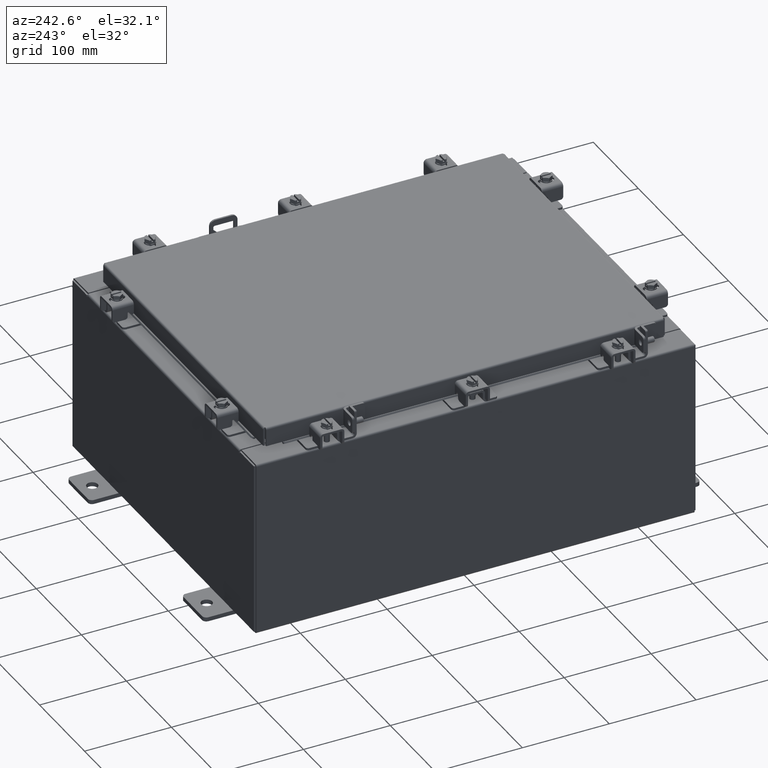
[diagram: clean part render]
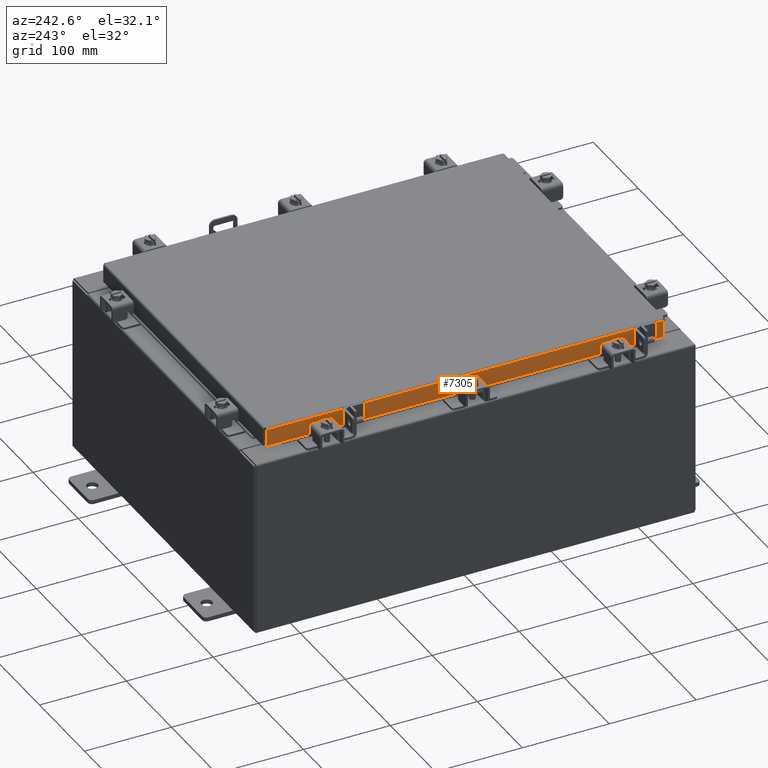
[diagram: same view with one face highlighted and labeled with its STEP entity id]
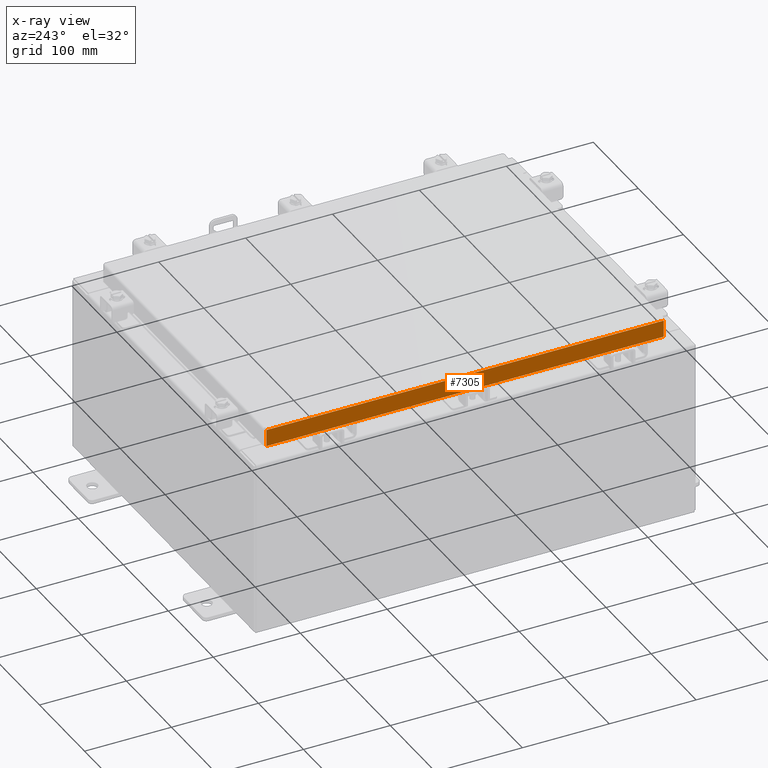
[diagram: x-ray of the same camera — body ghosted, the highlighted face saturated]
A machine part, auxiliary view. The second image highlights one B-rep face of the part: STEP entity #7305.
The next image is the same camera in x-ray: the body ghosted, the highlighted face saturated — about 0% of this face is hidden behind the body in this view.
In plain terms, the highlighted planar face has unit normal (1, 0, -0).
Its self-contained STEP definition (entity closure, byte-faithful):
#1792 = DIRECTION ( 'NONE',  ( 3.387180227794633400E-031, -1.000000000000000000, -9.232666117091638000E-046 ) ) ;
#2144 = VECTOR ( 'NONE', #16639, 39.37007874015748100 ) ;
#2177 = LINE ( 'NONE', #9403, #9802 ) ;
#2475 = VECTOR ( 'NONE', #13735, 39.37007874015748100 ) ;
#2730 = CARTESIAN_POINT ( 'NONE',  ( -7.078000000000001200, -8.255157864376263500, -0.8500000000000023100 ) ) ;
#2919 = CARTESIAN_POINT ( 'NONE',  ( -7.078000000000003800, 9.005157864376265300, 8.309553424256679200E-014 ) ) ;
#3503 = LINE ( 'NONE', #7220, #21470 ) ;
#3712 = ORIENTED_EDGE ( 'NONE', *, *, #7008, .F. ) ;
#4102 = LINE ( 'NONE', #5218, #8186 ) ;
#5102 = CARTESIAN_POINT ( 'NONE',  ( -7.078000000000003800, 9.005157864376265300, -0.08770000000000007000 ) ) ;
#5140 = CARTESIAN_POINT ( 'NONE',  ( -7.078000000000003800, -2.397446165233042600E-030, 2.021285296895435800E-014 ) ) ;
#5218 = CARTESIAN_POINT ( 'NONE',  ( -7.078000000000003800, -9.094000000000003000, -0.08770000000000007000 ) ) ;
#6580 = VERTEX_POINT ( 'NONE', #5102 ) ;
#6734 = LINE ( 'NONE', #2919, #20600 ) ;
#6764 = LINE ( 'NONE', #2730, #2144 ) ;
#7008 = EDGE_CURVE ( 'NONE', #12751, #7449, #6764, .T. ) ;
#7017 = FACE_OUTER_BOUND ( 'NONE', #20266, .T. ) ;
#7220 = CARTESIAN_POINT ( 'NONE',  ( -7.078000000000003800, -9.005157864376270600, -0.07469999999999978000 ) ) ;
#7305 = ADVANCED_FACE ( 'NONE', ( #7017 ), #15638, .F. ) ;
#7449 = VERTEX_POINT ( 'NONE', #17662 ) ;
#8115 = VERTEX_POINT ( 'NONE', #9380 ) ;
#8186 = VECTOR ( 'NONE', #1792, 39.37007874015748100 ) ;
#8711 = DIRECTION ( 'NONE',  ( -2.818880942772360100E-015, 0.0000000000000000000, -1.000000000000000000 ) ) ;
#8900 = AXIS2_PLACEMENT_3D ( 'NONE', #5140, #19114, #8711 ) ;
#9370 = EDGE_CURVE ( 'NONE', #6580, #14653, #6734, .T. ) ;
#9380 = CARTESIAN_POINT ( 'NONE',  ( -7.078000000000005600, -9.005157864376265300, -0.8499999999999996400 ) ) ;
#9403 = CARTESIAN_POINT ( 'NONE',  ( -7.078000000000005600, -9.094000000000003000, -0.8499999999999996400 ) ) ;
#9802 = VECTOR ( 'NONE', #21572, 39.37007874015748100 ) ;
#10406 = ORIENTED_EDGE ( 'NONE', *, *, #20164, .F. ) ;
#11498 = ORIENTED_EDGE ( 'NONE', *, *, #9370, .T. ) ;
#11509 = ORIENTED_EDGE ( 'NONE', *, *, #19102, .F. ) ;
#12243 = ORIENTED_EDGE ( 'NONE', *, *, #17860, .F. ) ;
#12751 = VERTEX_POINT ( 'NONE', #14947 ) ;
#13735 = DIRECTION ( 'NONE',  ( 4.379057701015054300E-047, 1.000000000000000000, 1.201604571657912400E-016 ) ) ;
#14653 = VERTEX_POINT ( 'NONE', #17854 ) ;
#14881 = ORIENTED_EDGE ( 'NONE', *, *, #21016, .F. ) ;
#14947 = CARTESIAN_POINT ( 'NONE',  ( -7.078000000000001200, -8.255157864376261800, -0.8500000000000023100 ) ) ;
#15112 = DIRECTION ( 'NONE',  ( -2.818880942772360100E-015, 6.982962677686265900E-015, -1.000000000000000000 ) ) ;
#15638 = PLANE ( 'NONE',  #8900 ) ;
#16338 = LINE ( 'NONE', #22247, #2475 ) ;
#16639 = DIRECTION ( 'NONE',  ( -0.0000000000000000000, 1.000000000000000000, -0.0000000000000000000 ) ) ;
#17568 = VERTEX_POINT ( 'NONE', #19181 ) ;
#17662 = CARTESIAN_POINT ( 'NONE',  ( -7.078000000000001200, 8.255157864376267100, -0.8500000000000023100 ) ) ;
#17854 = CARTESIAN_POINT ( 'NONE',  ( -7.078000000000005600, 9.005157864376270600, -0.8499999999999975400 ) ) ;
#17860 = EDGE_CURVE ( 'NONE', #8115, #12751, #2177, .T. ) ;
#19102 = EDGE_CURVE ( 'NONE', #17568, #8115, #3503, .T. ) ;
#19114 = DIRECTION ( 'NONE',  ( 1.000000000000000000, 3.387180227794633400E-031, -2.818880942772360100E-015 ) ) ;
#19181 = CARTESIAN_POINT ( 'NONE',  ( -7.078000000000003800, -9.005157864376270600, -0.08770000000000007000 ) ) ;
#20164 = EDGE_CURVE ( 'NONE', #6580, #17568, #4102, .T. ) ;
#20266 = EDGE_LOOP ( 'NONE', ( #10406, #11498, #14881, #3712, #12243, #11509 ) ) ;
#20600 = VECTOR ( 'NONE', #15112, 39.37007874015748100 ) ;
#21016 = EDGE_CURVE ( 'NONE', #7449, #14653, #16338, .T. ) ;
#21128 = DIRECTION ( 'NONE',  ( -2.818880942772360100E-015, 6.982962677686265900E-015, -1.000000000000000000 ) ) ;
#21470 = VECTOR ( 'NONE', #21128, 39.37007874015748100 ) ;
#21572 = DIRECTION ( 'NONE',  ( 4.379057701015054300E-047, 1.000000000000000000, 1.201604571657912400E-016 ) ) ;
#22247 = CARTESIAN_POINT ( 'NONE',  ( -7.078000000000005600, -9.094000000000003000, -0.8499999999999996400 ) ) ;